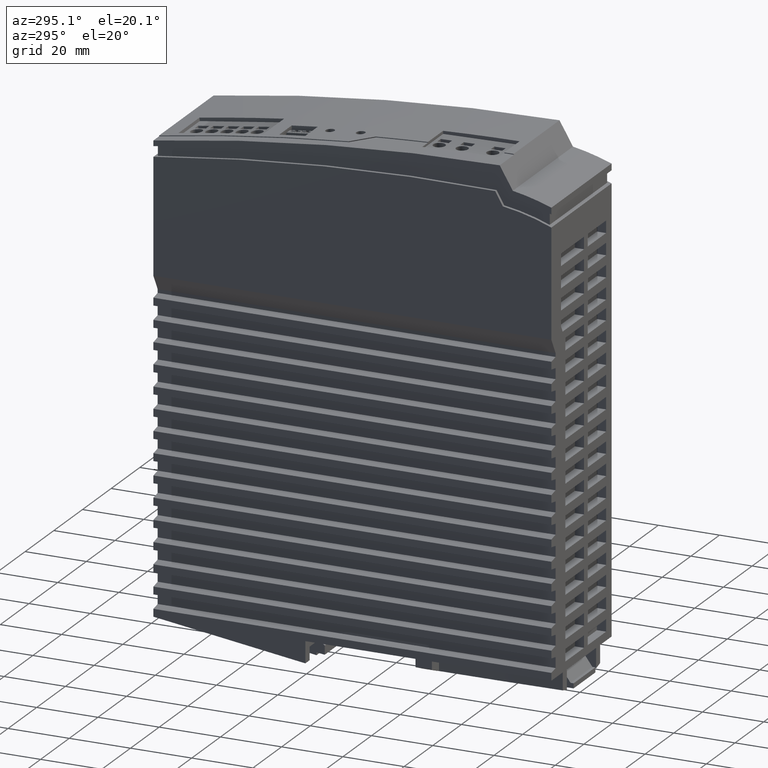
[diagram: clean part render]
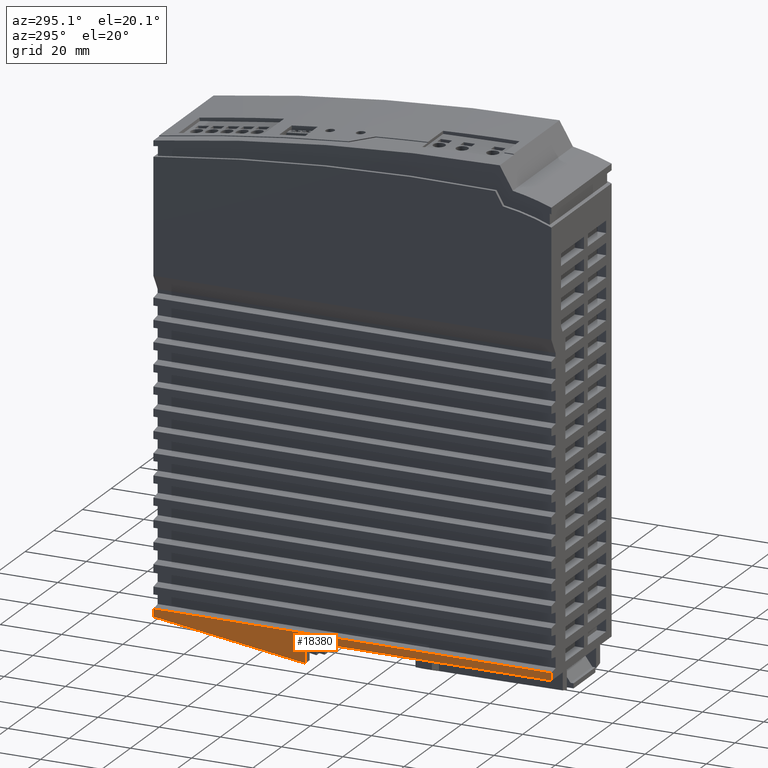
[diagram: same view with one face highlighted and labeled with its STEP entity id]
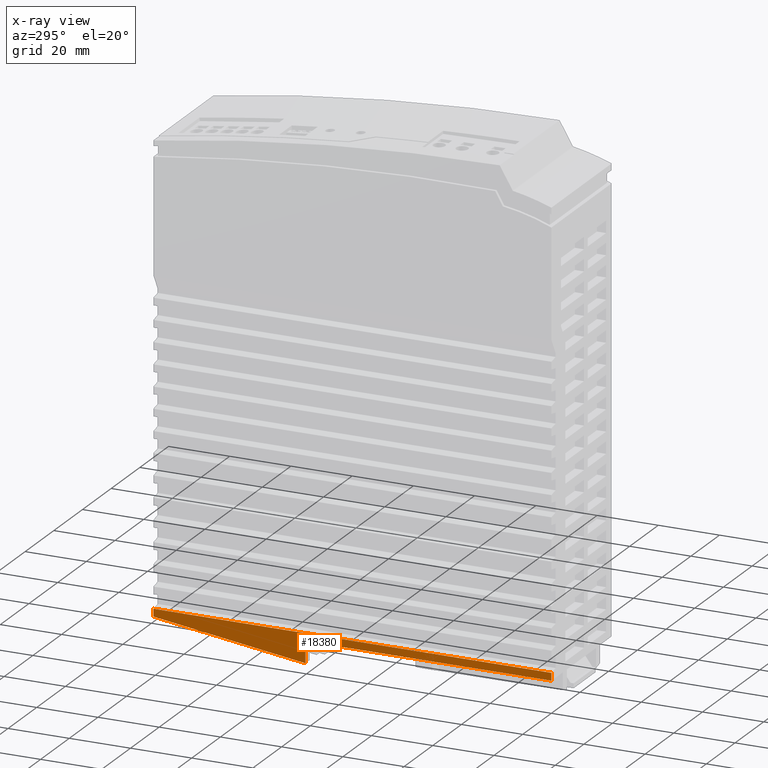
[diagram: x-ray of the same camera — body ghosted, the highlighted face saturated]
A machine part, auxiliary view. The second image highlights one B-rep face of the part: STEP entity #18380.
The next image is the same camera in x-ray: the body ghosted, the highlighted face saturated — about 0% of this face is hidden behind the body in this view.
In plain terms, the highlighted planar face has unit normal (-1, 0, 0).
Its self-contained STEP definition (entity closure, byte-faithful):
#12170=CARTESIAN_POINT('',(-6.99999999999977,80.35,-8.5));
#12180=VERTEX_POINT('',#12170);
#12210=CARTESIAN_POINT('',(128.90472881771,80.35,-8.5));
#12220=DIRECTION('',(1.,0.,0.));
#12230=VECTOR('',#12220,1.);
#12240=LINE('',#12210,#12230);
#12250=CARTESIAN_POINT('',(0.,80.35,-8.5));
#12260=VERTEX_POINT('',#12250);
#12270=EDGE_CURVE('',#12180,#12260,#12240,.T.);
#14590=CARTESIAN_POINT('',(0.,64.9999998943551,-8.5));
#14600=DIRECTION('',(0.,-1.,0.));
#14610=VECTOR('',#14600,1.);
#14620=LINE('',#14590,#14610);
#14630=CARTESIAN_POINT('',(0.,0.,-8.5));
#14640=VERTEX_POINT('',#14630);
#14650=EDGE_CURVE('',#12260,#14640,#14620,.T.);
#17990=CARTESIAN_POINT('',(0.,0.,-8.5));
#18000=DIRECTION('',(-0.,0.,1.));
#18010=DIRECTION('',(0.,-1.,0.));
#18020=AXIS2_PLACEMENT_3D('',#17990,#18000,#18010);
#18030=PLANE('',#18020);
#18040=CARTESIAN_POINT('',(128.90472881771,130.,-8.5));
#18050=DIRECTION('',(-1.,0.,0.));
#18060=VECTOR('',#18050,1.);
#18070=LINE('',#18040,#18060);
#18080=CARTESIAN_POINT('',(2.47101905787429,130.,-8.5));
#18090=VERTEX_POINT('',#18080);
#18100=CARTESIAN_POINT('',(0.,129.999999999995,-8.5));
#18110=VERTEX_POINT('',#18100);
#18120=EDGE_CURVE('',#18090,#18110,#18070,.T.);
#18130=ORIENTED_EDGE('',*,*,#18120,.T.);
#18140=CARTESIAN_POINT('',(2.47101905787429,64.9999998943551,-8.5));
#18150=DIRECTION('',(0.,1.,0.));
#18160=VECTOR('',#18150,1.);
#18170=LINE('',#18140,#18160);
#18180=CARTESIAN_POINT('',(2.47101905787429,0.,-8.5));
#18190=VERTEX_POINT('',#18180);
#18200=EDGE_CURVE('',#18190,#18090,#18170,.T.);
#18210=ORIENTED_EDGE('',*,*,#18200,.T.);
#18220=CARTESIAN_POINT('',(128.90472881771,0.,-8.5));
#18230=DIRECTION('',(-1.,0.,0.));
#18240=VECTOR('',#18230,1.);
#18250=LINE('',#18220,#18240);
#18260=EDGE_CURVE('',#18190,#14640,#18250,.T.);
#18270=ORIENTED_EDGE('',*,*,#18260,.F.);
#18280=ORIENTED_EDGE('',*,*,#14650,.T.);
#18290=ORIENTED_EDGE('',*,*,#12270,.T.);
#18300=CARTESIAN_POINT('',(-9.16414905819761,64.9999998943551,-8.5));
#18310=DIRECTION('',(-0.139606237490195,-0.990207098769662,0.));
#18320=VECTOR('',#18310,1.);
#18330=LINE('',#18300,#18320);
#18340=EDGE_CURVE('',#18110,#12180,#18330,.T.);
#18350=ORIENTED_EDGE('',*,*,#18340,.T.);
#18360=EDGE_LOOP('',(#18350,#18290,#18280,#18270,#18210,#18130));
#18370=FACE_OUTER_BOUND('',#18360,.T.);
#18380=ADVANCED_FACE('',(#18370),#18030,.T.);